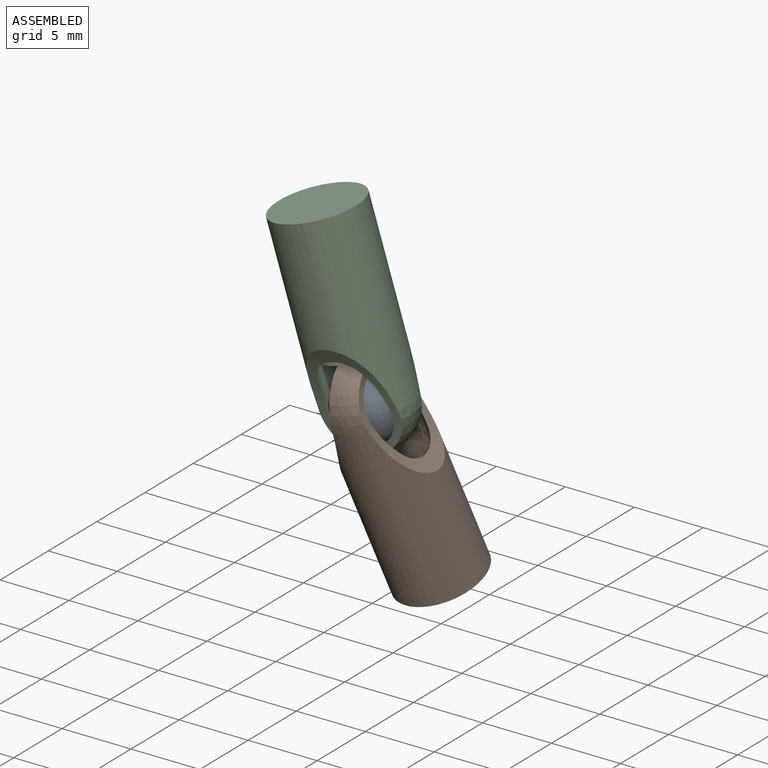
[diagram: assembled view]
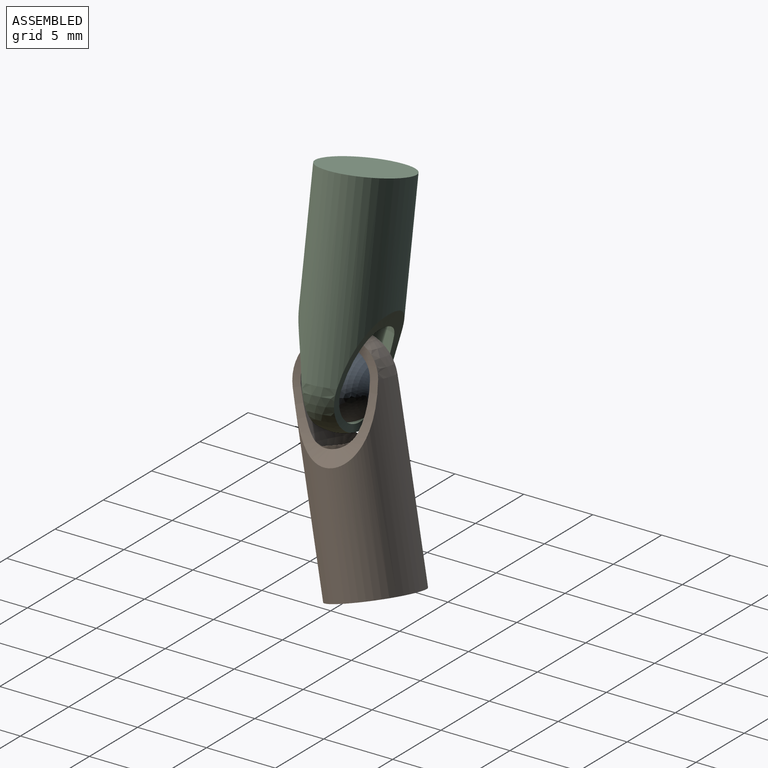
[diagram: assembled view, second angle]
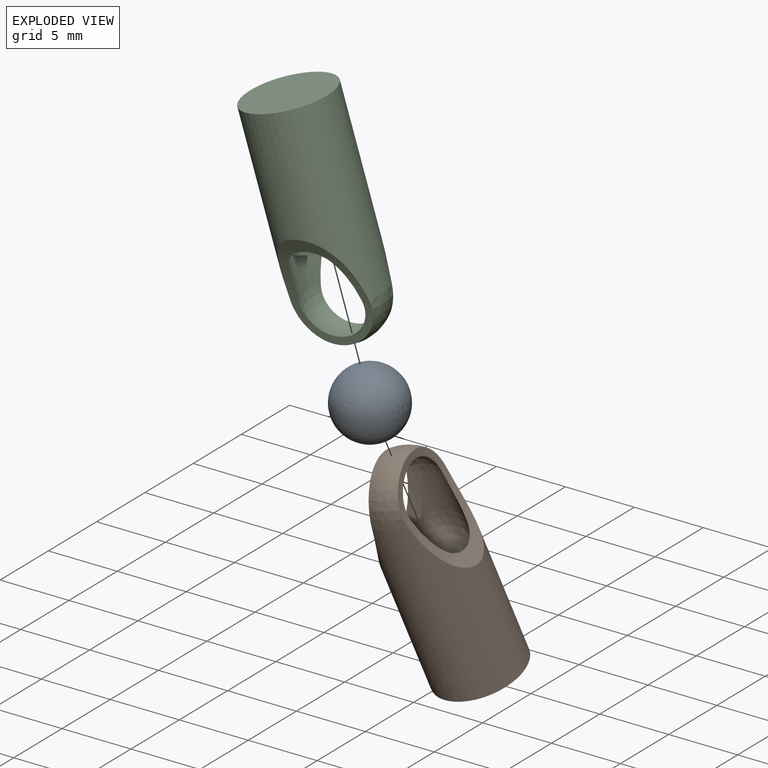
[diagram: exploded view]
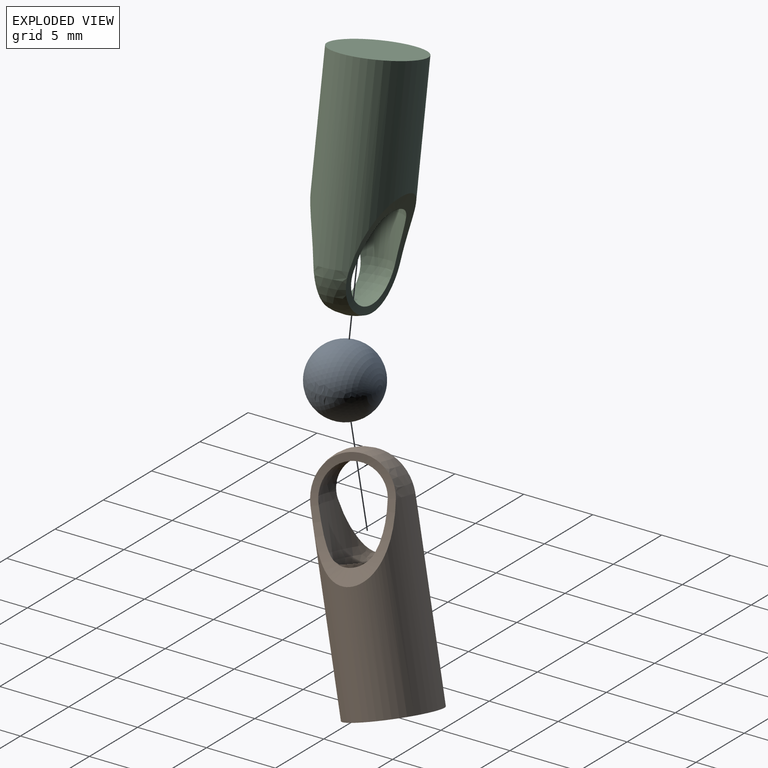
[diagram: exploded view, second angle]
ASSEMBLY  parts=3 mates=2
PART A: 1 faces, bbox 5x5x5 mm
  f0: sphere r=2.5mm, area 78.5mm2
PART B: 9 faces, bbox 6.3x6.3x16.1 mm
  f0: cylinder r=2.65mm len=4.37mm, axis (0,0,1), area 11.6mm2, adj f1,f3,f4,f8
  f1: sphere r=2.65mm, area 42.4mm2, adj f0,f2,f4,f8
  f2: cylinder r=2.65mm len=4.37mm, axis (0,0,1), area 11.6mm2, adj f1,f3,f4,f8
  f3: sphere r=2.65mm, area 17.6mm2, adj f0,f2,f4,f8
  f4: cylinder r=14mm len=7.8mm, axis (0,1,0), area 13.9mm2, adj f0,f1,f2,f3,f5,f6
  f5: sphere r=3.15mm, area 20.6mm2, adj f4,f6,f8
  f6: cylinder r=3.15mm len=12.95mm, axis (0,0,1), area 205.4mm2, adj f4,f5,f7,f8
  f7: plane 6.3x6.3mm, normal (0,0,-1), area 31.2mm2, adj f6
  f8: cylinder r=14mm len=7.8mm, axis (0,1,0), area 14.2mm2, adj f0,f1,f2,f3,f5,f6
PART C: same geometry as B
PLACE A t=(-1.21,-2.8,2.11)mm fixed
PLACE B rot(axis=(0.75,-0.54,0.38),22.5deg) t=(-1.21,-2.8,2.11)mm
PLACE C rot(axis=(-0.72,0.69,-0.07),167.3deg) t=(-1.21,-2.8,2.11)mm
MATE ball B.f0 <-> A.f0  axis (-0.19,-0.3,0.93) through (-1.21,-2.8,2.11)mm
MATE ball C.f0 <-> A.f0  axis (0.25,0.06,-0.97) through (-1.21,-2.8,2.11)mm
